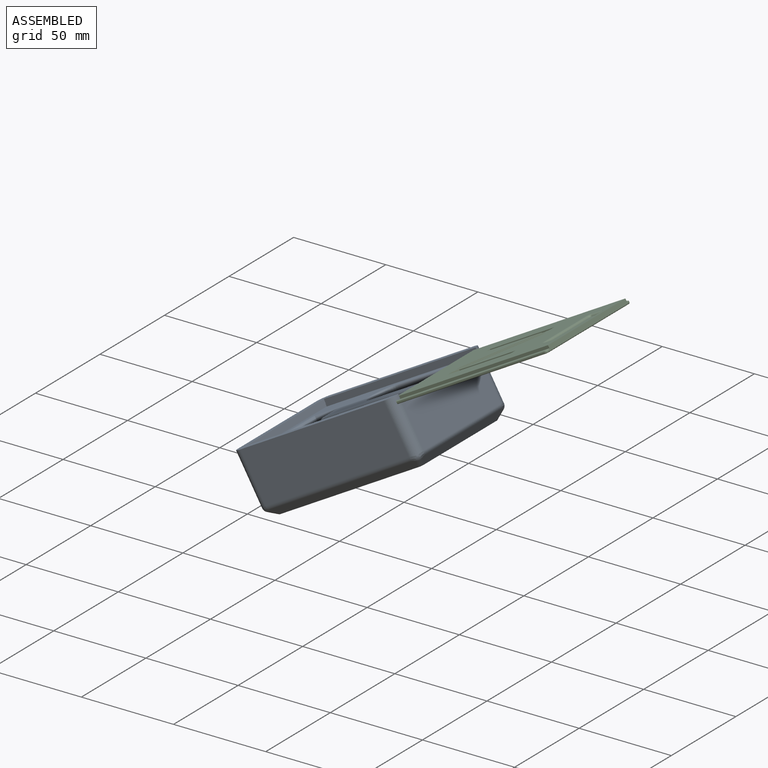
[diagram: assembled view]
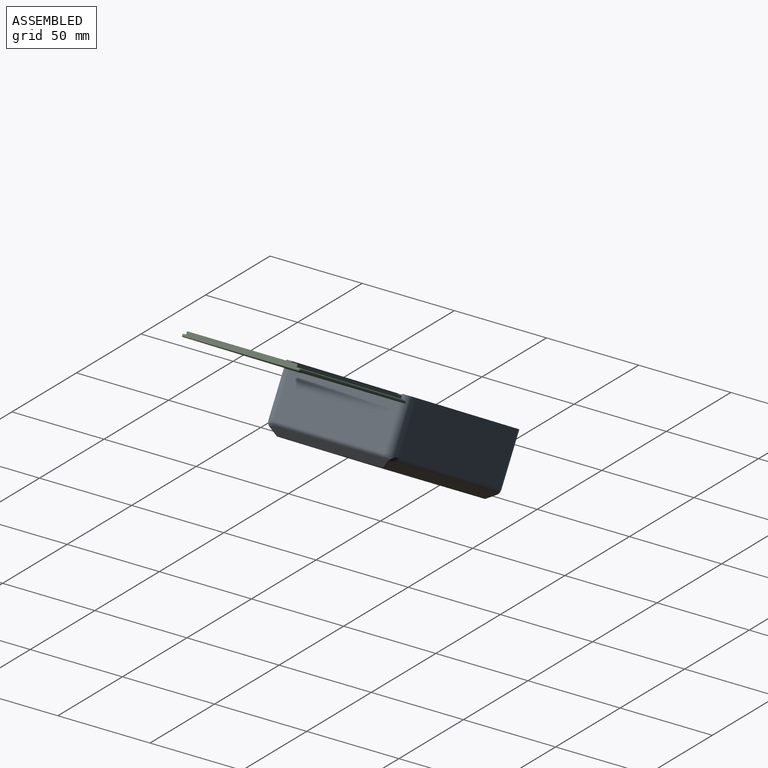
[diagram: assembled view, second angle]
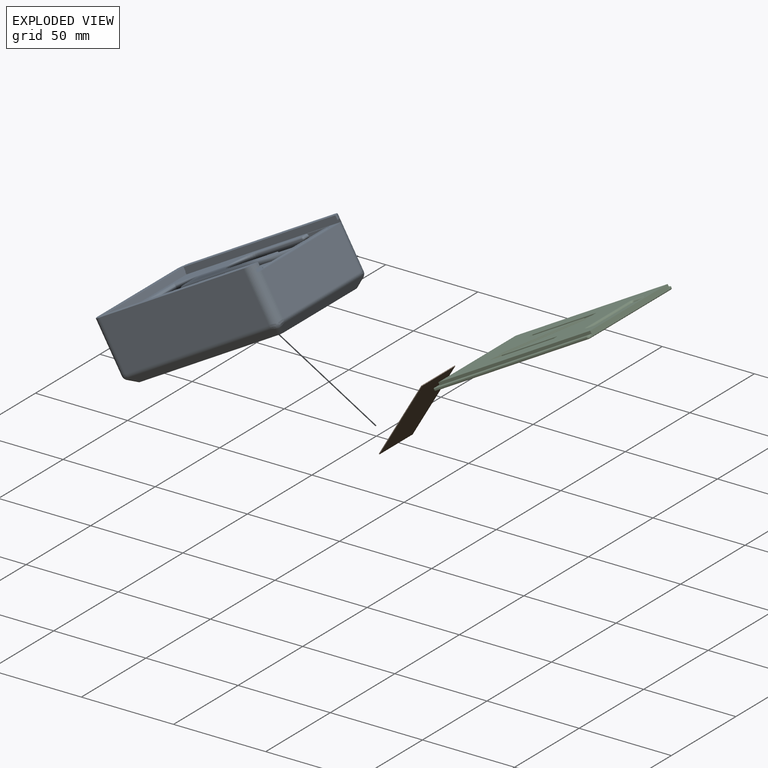
[diagram: exploded view]
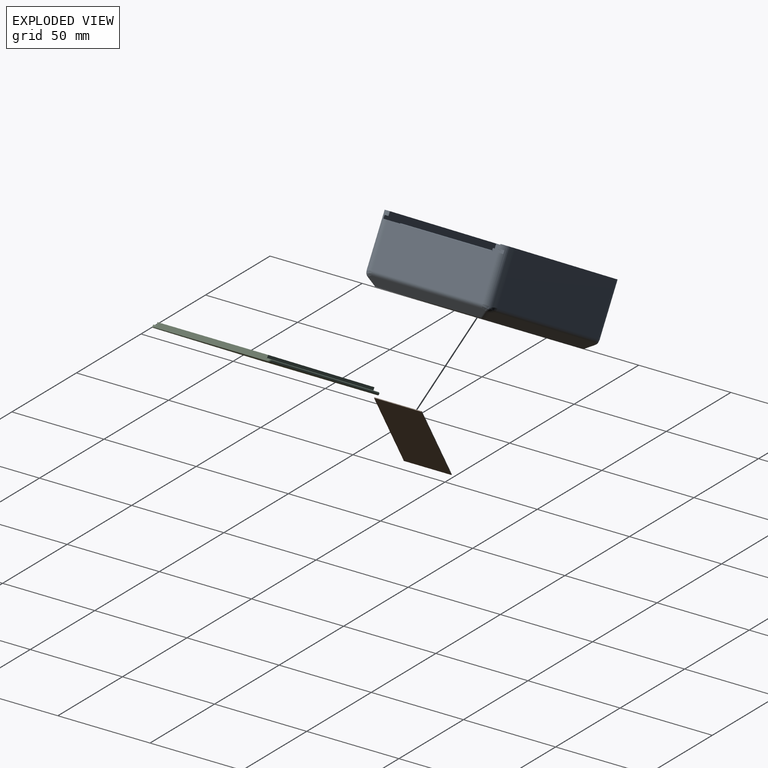
[diagram: exploded view, second angle]
ASSEMBLY  parts=3 mates=2
PART A: 90 faces, bbox 100x70x34.3 mm
  f0: cylinder r=1mm len=28.25mm, axis (0.87,0,0.5), area 50.3mm2, adj f1,f5,f7,f13
  f1: bspline ~20x10mm, area 40.3mm2, adj f0,f2,f7,f14
  f2: cylinder r=1mm len=28.25mm, axis (-0.87,0,-0.5), area 50.3mm2, adj f1,f3,f4,f7
  f3: plane 27.75x15.95mm, normal (0,-1,0), area 221.3mm2, adj f2,f14,f17
  f4: sphere r=1mm, area 2.6mm2, adj f2,f12,f17
  f5: plane 27.75x15.95mm, normal (0,1,0), area 221.3mm2, adj f0,f14,f16
  f6: plane 26x3mm, normal (0,0,1), area 78mm2, adj f7,f8,f10,f11
  f7: plane 40.25x26mm, normal (0.5,0,-0.87), area 385.7mm2, adj f0,f1,f2,f6,f8,f9,f10,f12
  f8: plane 54.51x25mm, normal (0,1,0), area 82.9mm2, adj f6,f7,f9,f11,f18,f54
  f9: cylinder r=1mm len=3mm, axis (0,-1,0), area 7.9mm2, adj f7,f8,f13,f18
  f10: plane 54.51x25mm, normal (0,-1,0), area 82.9mm2, adj f6,f7,f11,f12,f18,f54
  f11: plane 36.56x26mm, normal (-0.5,0,0.87), area 1096.3mm2, adj f6,f8,f10,f54
  f12: cylinder r=1mm len=3mm, axis (0,-1,0), area 7.9mm2, adj f4,f7,f10,f18
  f13: sphere r=1mm, area 2.6mm2, adj f0,f9,f16
  f14: cylinder r=9mm len=21.72mm, axis (0,0,1), area 554.4mm2, adj f1,f3,f5,f15
  f15: torus R=10mm, axis (0,0,1), area 46.2mm2, adj f14,f16,f17,f18
  f16: cylinder r=1mm len=27.75mm, axis (-1,0,0), area 43.6mm2, adj f5,f13,f15,f18
  f17: cylinder r=1mm len=27.75mm, axis (1,0,0), area 43.6mm2, adj f3,f4,f15,f18
  f18: plane 97.5x65mm, normal (0,0,1), area 3089.5mm2, adj f8,f9,f10,f12,f15,f16,f17,f19
  f19: plane 96.83x1.75mm, normal (0,-1,0), area 169.5mm2, adj f18,f20,f22,f34
  f20: plane 65x1.75mm, normal (1,0,0), area 113.8mm2, adj f18,f19,f21,f22
  f21: plane 96.83x1.75mm, normal (0,1,0), area 169.5mm2, adj f18,f20,f22,f33
  f22: plane 97.5x65mm, normal (0,0,-1), area 636.4mm2, adj f19,f20,f21,f33,f34,f37,f38,f39
  f23: plane 60x23.76mm, normal (1,0,0), area 1425.4mm2, adj f18,f33,f34,f80
  f24: plane 60x27.76mm, normal (-1,0,0), area 1665.4mm2, adj f32,f35,f36,f74
  f25: plane 90x27.76mm, normal (0,-1,0), area 2498.2mm2, adj f32,f33,f36,f70
  f26: plane 90x27.76mm, normal (0,1,0), area 2498.2mm2, adj f34,f35,f36,f84
  f27: plane 90x60mm, normal (0,0,-1), area 5396.6mm2, adj f28,f29,f30,f31,f67,f72,f77,f82
  f28: plane 62.83x4.12mm, normal (-0.71,0,-0.71), area 347.8mm2, adj f27,f67,f71,f74,f76,f77
  f29: plane 92.83x4.12mm, normal (0,0.71,-0.71), area 522.6mm2, adj f27,f77,f81,f82,f84,f86
  f30: plane 92.83x4.12mm, normal (0,-0.71,-0.71), area 522.6mm2, adj f27,f67,f68,f70,f72,f73
  f31: plane 62.83x4.12mm, normal (0.71,0,-0.71), area 347.8mm2, adj f27,f72,f78,f80,f82,f83
  f32: cylinder r=5mm len=28.34mm, axis (0,0,-1), area 219.6mm2, adj f24,f25,f36,f68,f71
  f33: cylinder r=5mm len=28.34mm, axis (0,0,1), area 215mm2, adj f18,f21,f22,f23,f25,f36,f39,f73
  f34: cylinder r=5mm len=28.34mm, axis (0,0,-1), area 215mm2, adj f18,f19,f22,f23,f26,f36,f37,f83
  f35: cylinder r=5mm len=28.34mm, axis (0,0,1), area 219.6mm2, adj f24,f26,f36,f76,f81
  f36: plane 100x70mm, normal (0,0,1), area 1278.5mm2, adj f24,f25,f26,f32,f33,f34,f35,f37
  f37: plane 95x2.25mm, normal (0,-1,0), area 213.8mm2, adj f22,f34,f36,f38
  f38: plane 60x2.25mm, normal (1,0,0), area 135mm2, adj f22,f36,f37,f39
  f39: plane 95x2.25mm, normal (0,1,0), area 213.8mm2, adj f22,f33,f36,f38
  f40: plane 17.6x14.5mm, normal (-1,0,0), area 244.5mm2, adj f41,f42,f43,f44,f45,f53
  f41: plane 68x12.6mm, normal (0,-1,0), area 856.8mm2, adj f40,f42,f51,f63
  f42: cylinder r=5mm len=68mm, axis (-1,0,0), area 534.1mm2, adj f40,f41,f43,f65
  f43: plane 68x4.5mm, normal (0,0,1), area 306mm2, adj f40,f42,f44,f66
  f44: cylinder r=5mm len=68mm, axis (1,0,0), area 534.1mm2, adj f40,f43,f45,f64
  f45: plane 68x12.6mm, normal (0,1,0), area 856.8mm2, adj f40,f44,f52,f62
  f46: plane 42.5x12.5mm, normal (0,0,1), area 531.2mm2, adj f47,f48,f49,f50
  f47: plane 23x12.5mm, normal (0,1,0), area 287.5mm2, adj f46,f48,f50,f56
  f48: plane 42.5x23mm, normal (1,0,0), area 977.5mm2, adj f46,f47,f49,f55
  f49: plane 23x12.5mm, normal (0,-1,0), area 287.5mm2, adj f46,f48,f50,f57
  f50: plane 42.5x23mm, normal (-1,0,0), area 619.4mm2, adj f46,f47,f49,f58,f59,f62,f63,f64
  f51: cylinder r=2mm len=70mm, axis (1,0,0), area 215.9mm2, adj f18,f41,f53,f61
  f52: cylinder r=2mm len=70mm, axis (-1,0,0), area 215.9mm2, adj f18,f45,f53,f60
  f53: cylinder r=2mm len=18.5mm, axis (0,-1,0), area 50.1mm2, adj f18,f40,f51,f52
  f54: cylinder r=30mm len=26mm, axis (0,1,0), area 406.9mm2, adj f8,f10,f11,f18
  f55: cylinder r=2.5mm len=47.5mm, axis (0,1,0), area 174mm2, adj f18,f48,f56,f57
  f56: cylinder r=2.5mm len=17.5mm, axis (-1,0,0), area 56.2mm2, adj f18,f47,f55,f58
  f57: cylinder r=2.5mm len=17.5mm, axis (1,0,0), area 56.2mm2, adj f18,f49,f55,f59
  f58: cylinder r=2.5mm len=14.5mm, axis (0,-1,0), area 50mm2, adj f18,f50,f56,f60
  f59: cylinder r=2.5mm len=14.5mm, axis (0,-1,0), area 50mm2, adj f18,f50,f57,f61
  f60: bspline ~3.08x2.5mm, area 8mm2, adj f52,f58,f62
  f61: bspline ~3.08x2.5mm, area 8mm2, adj f51,f59,f63
  f62: cylinder r=2.5mm len=12.6mm, axis (0,0,1), area 48.8mm2, adj f45,f50,f60,f64
  f63: cylinder r=2.5mm len=12.6mm, axis (0,0,-1), area 48.8mm2, adj f41,f50,f61,f65
  f64: torus R=7.5mm, axis (-1,0,0), area 36.4mm2, adj f44,f50,f62,f66
  f65: torus R=7.5mm, axis (-1,0,0), area 36.4mm2, adj f42,f50,f63,f66
  f66: cylinder r=2.5mm len=4.5mm, axis (0,1,0), area 17.7mm2, adj f43,f50,f64,f65
  f67: cylinder r=3mm len=5.66mm, axis (0.58,0.58,-0.58), area 18.1mm2, adj f27,f28,f30,f69
  f68: bspline ~3.54x2.71mm, area 7.6mm2, adj f30,f32,f69,f70
  f69: sphere r=3mm, area 5mm2, adj f67,f68,f71
  f70: cylinder r=3mm len=90mm, axis (1,0,0), area 212.1mm2, adj f25,f30,f68,f73
  f71: bspline ~3.54x2.71mm, area 7.6mm2, adj f28,f32,f69,f74
  f72: cylinder r=3mm len=5.66mm, axis (0.58,-0.58,0.58), area 18.1mm2, adj f27,f30,f31,f75
  f73: bspline ~3.54x2.71mm, area 7.6mm2, adj f30,f33,f70,f75
  f74: cylinder r=3mm len=60mm, axis (0,-1,0), area 141.4mm2, adj f24,f28,f71,f76
  f75: sphere r=3mm, area 5mm2, adj f72,f73,f78
  f76: bspline ~3.54x2.71mm, area 7.6mm2, adj f28,f35,f74,f79
  f77: cylinder r=3mm len=5.66mm, axis (0.58,-0.58,-0.58), area 18.1mm2, adj f27,f28,f29,f79
  f78: bspline ~3.54x2.71mm, area 7.6mm2, adj f31,f33,f75,f80
  f79: sphere r=3mm, area 5mm2, adj f76,f77,f81
  f80: cylinder r=3mm len=60mm, axis (0,1,0), area 141.4mm2, adj f23,f31,f78,f83
  f81: bspline ~3.54x2.71mm, area 7.6mm2, adj f29,f35,f79,f84
  f82: cylinder r=3mm len=5.66mm, axis (0.58,0.58,0.58), area 18.1mm2, adj f27,f29,f31,f85
  f83: bspline ~3.54x2.71mm, area 7.6mm2, adj f31,f34,f80,f85
  f84: cylinder r=3mm len=90mm, axis (-1,0,0), area 212.1mm2, adj f26,f29,f81,f86
  f85: sphere r=3mm, area 5mm2, adj f82,f83,f86
  f86: bspline ~3.54x2.71mm, area 7.6mm2, adj f29,f34,f84,f85
  f87: cylinder r=0.25mm len=50mm, axis (0,1,0), area 37.4mm2, adj f18,f88,f89
  f88: plane 0.5x0.23mm, normal (0,-1,0), area 0.1mm2, adj f18,f87
  f89: plane 0.5x0.23mm, normal (0,1,0), area 0.1mm2, adj f18,f87
PART B: 6 faces, bbox 46x25.8x0.4 mm
  f0: plane 25.75x0.4mm, normal (-1,0,0), area 10.3mm2, adj f1,f3,f4,f5
  f1: plane 46x0.4mm, normal (0,-1,0), area 18.4mm2, adj f0,f2,f4,f5
  f2: plane 25.75x0.4mm, normal (1,0,0), area 10.3mm2, adj f1,f3,f4,f5
  f3: plane 46x0.4mm, normal (0,1,0), area 18.4mm2, adj f0,f2,f4,f5
  f4: plane 46x25.75mm, normal (0,0,1), area 1184.5mm2, adj f0,f1,f2,f3
  f5: plane 46x25.75mm, normal (0,0,-1), area 1184.5mm2, adj f0,f1,f2,f3
PART C: 56 faces, bbox 97.7x65x3 mm
  f0: plane 95x60mm, normal (0,0,1), area 4830.4mm2, adj f3,f7,f8,f9,f31,f32,f33,f34
  f1: plane 96.5x63.8mm, normal (0,0,1), area 486.2mm2, adj f7,f8,f9,f12,f13,f14,f15,f16
  f2: plane 96.5x63.8mm, normal (0,0,-1), area 6156.2mm2, adj f19,f20,f21,f22,f23,f24,f27,f30
  f3: plane 61.8x2.5mm, normal (-1,0,0), area 150.9mm2, adj f0,f7,f9,f10,f11,f12,f18,f24
  f4: plane 95x0.5mm, normal (0,-1,0), area 47.5mm2, adj f10,f14,f21,f29
  f5: plane 62.8x0.5mm, normal (1,0,0), area 31.4mm2, adj f15,f19,f26,f29
  f6: plane 95x0.5mm, normal (0,1,0), area 47.5mm2, adj f11,f16,f20,f26
  f7: plane 95x2mm, normal (0,-1,0), area 142.6mm2, adj f0,f1,f3,f8,f12
  f8: plane 60x1.5mm, normal (1,0,0), area 90mm2, adj f0,f1,f7,f9
  f9: plane 95x2mm, normal (0,1,0), area 142.6mm2, adj f0,f1,f3,f8,f18
  f10: cylinder r=1.5mm len=1.5mm, axis (0,0,-1), area 1.2mm2, adj f3,f4,f13,f23
  f11: cylinder r=1.5mm len=1.5mm, axis (0,0,1), area 1.2mm2, adj f3,f6,f17,f22
  f12: cylinder r=0.5mm len=0.8mm, axis (0,1,0), area 0.6mm2, adj f1,f3,f7,f13
  f13: torus R=1mm, axis (0,0,1), area 1.6mm2, adj f1,f10,f12,f14
  f14: cylinder r=0.5mm len=95mm, axis (-1,0,0), area 74.6mm2, adj f1,f4,f13,f28
  f15: cylinder r=0.5mm len=62.8mm, axis (0,-1,0), area 49.3mm2, adj f1,f5,f25,f28
  f16: cylinder r=0.5mm len=95mm, axis (1,0,0), area 74.6mm2, adj f1,f6,f17,f25
  f17: torus R=1mm, axis (0,0,1), area 1.6mm2, adj f1,f11,f16,f18
  f18: cylinder r=0.5mm len=1mm, axis (0,1,0), area 0.8mm2, adj f1,f3,f9,f17
  f19: cylinder r=0.5mm len=62.8mm, axis (0,1,0), area 49.3mm2, adj f2,f5,f27,f30
  f20: cylinder r=0.5mm len=95mm, axis (-1,0,0), area 74.6mm2, adj f2,f6,f22,f27
  f21: cylinder r=0.5mm len=95mm, axis (1,0,0), area 74.6mm2, adj f2,f4,f23,f30
  f22: torus R=1mm, axis (0,0,1), area 1.6mm2, adj f2,f11,f20,f24
  f23: torus R=1mm, axis (0,0,1), area 1.6mm2, adj f2,f10,f21,f24
  f24: cylinder r=0.5mm len=61.8mm, axis (0,-1,0), area 48.5mm2, adj f2,f3,f22,f23
  f25: torus R=0.5mm, axis (0,0,1), area 1mm2, adj f1,f15,f16,f26
  f26: cylinder r=1mm len=1mm, axis (0,0,-1), area 0.8mm2, adj f5,f6,f25,f27
  f27: torus R=0.5mm, axis (0,0,1), area 1mm2, adj f2,f19,f20,f26
  f28: torus R=0.5mm, axis (0,0,1), area 1mm2, adj f1,f14,f15,f29
  f29: cylinder r=1mm len=1mm, axis (0,0,1), area 0.8mm2, adj f4,f5,f28,f30
  f30: torus R=0.5mm, axis (0,0,1), area 1mm2, adj f2,f19,f21,f29
  f31: plane 3x2mm, normal (1,0,0), area 6mm2, adj f0,f32,f37,f38
  f32: plane 40x24mm, normal (-0.51,0.86,0), area 93.3mm2, adj f0,f31,f33,f38
  f33: plane 3x2mm, normal (-1,0,0), area 6mm2, adj f0,f32,f34,f38
  f34: plane 40x2mm, normal (0,-1,0), area 80mm2, adj f0,f33,f35,f38
  f35: plane 3x2mm, normal (1,0,0), area 6mm2, adj f0,f34,f36,f38
  f36: plane 35x2mm, normal (0,1,0), area 70mm2, adj f0,f35,f37,f38
  f37: plane 35x21mm, normal (0.51,-0.86,0), area 81.6mm2, adj f0,f31,f36,f38
  f38: plane 40x27mm, normal (0,0,1), area 232.5mm2, adj f31,f32,f33,f34,f35,f36,f37
  f39: plane 40x24mm, normal (0.51,-0.86,0), area 93.3mm2, adj f0,f40,f45,f46
  f40: plane 3x2mm, normal (1,0,0), area 6mm2, adj f0,f39,f41,f46
  f41: plane 40x2mm, normal (0,1,0), area 80mm2, adj f0,f40,f42,f46
  f42: plane 3x2mm, normal (-1,0,0), area 6mm2, adj f0,f41,f43,f46
  f43: plane 35x2mm, normal (0,-1,0), area 70mm2, adj f0,f42,f44,f46
  f44: plane 35x21mm, normal (-0.51,0.86,0), area 81.6mm2, adj f0,f43,f45,f46
  f45: plane 3x2mm, normal (-1,0,0), area 6mm2, adj f0,f39,f44,f46
  f46: plane 40x27mm, normal (0,0,1), area 232.5mm2, adj f39,f40,f41,f42,f43,f44,f45
  f47: plane 35x8mm, normal (0,0,1), area 279.1mm2, adj f48,f49,f50,f51,f52,f53,f54,f55
  f48: torus R=2.41mm, axis (0,0,1), area 4.6mm2, adj f0,f47,f49,f50
  f49: cylinder r=1.5mm len=6mm, axis (-1,0,0), area 11.1mm2, adj f0,f47,f48,f51
  f50: cylinder r=1.5mm len=33mm, axis (0,1,0), area 60.9mm2, adj f0,f47,f48,f52
  f51: torus R=2.41mm, axis (0,0,1), area 4.6mm2, adj f0,f47,f49,f53
  f52: torus R=2.41mm, axis (0,0,1), area 4.6mm2, adj f0,f47,f50,f54
  f53: cylinder r=1.5mm len=33mm, axis (0,1,0), area 60.9mm2, adj f0,f47,f51,f55
  f54: cylinder r=1.5mm len=6mm, axis (-1,0,0), area 11.1mm2, adj f0,f47,f52,f55
  f55: torus R=2.41mm, axis (0,0,1), area 4.6mm2, adj f0,f47,f53,f54
PLACE A rot(axis=(0,-1,0),29.9deg) t=(17.6,-37.39,-46.74)mm
PLACE B rot(axis=(0.87,0,0.5),180deg) t=(19.78,-18.44,-25.16)mm
PLACE C rot(axis=(-0.26,0,0.97),180deg) t=(84.42,-37.39,26.41)mm
MATE slider C.f5 <-> A.f20  axis (-0.87,0,-0.5) through (41.78,-37.39,2.77)mm
MATE planar B.f4 <-> A.f11  axis (0.86,0,-0.5) through (20.13,-18.44,-25.36)mm
